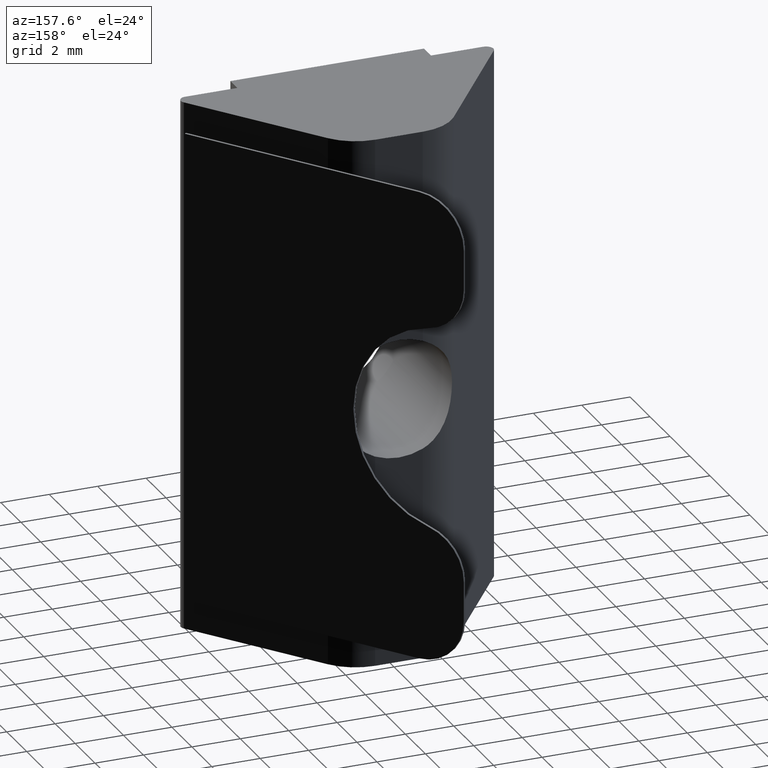
[diagram: clean part render]
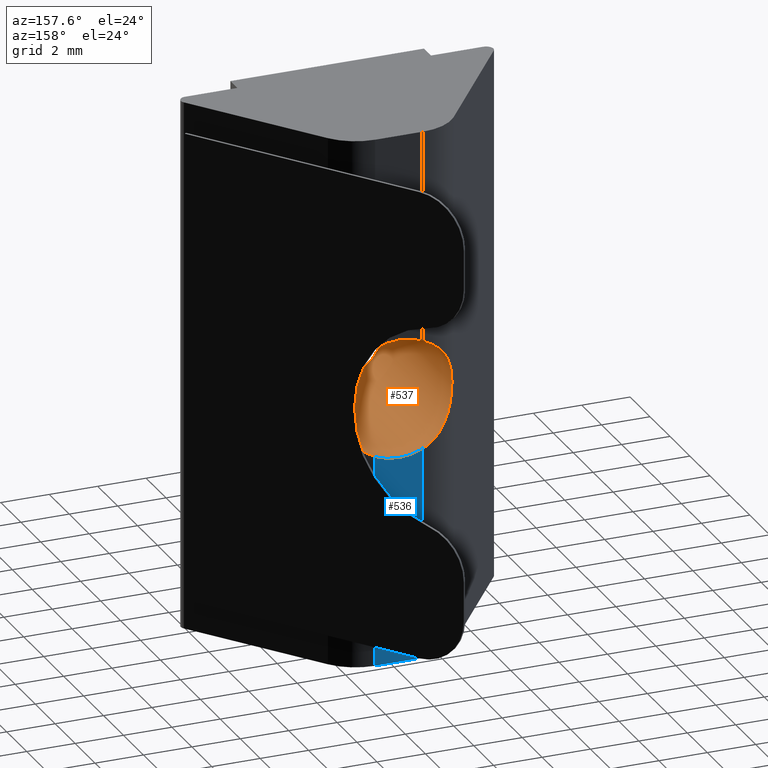
[diagram: same view with the hole feature highlighted: cylindrical wall and planar end face, labeled with their STEP entity ids]
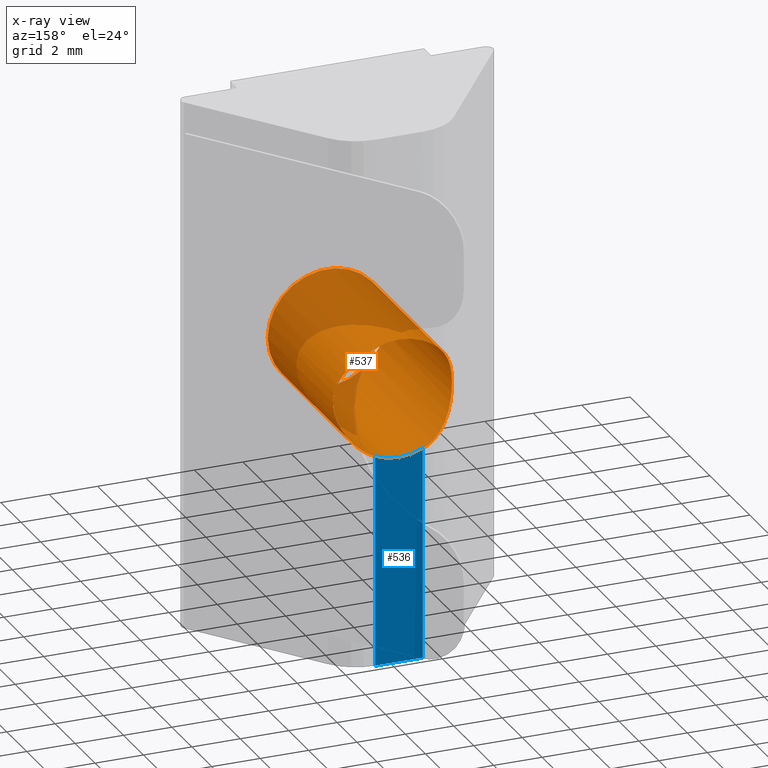
[diagram: x-ray of the same camera — body ghosted, the hole faces saturated]
A machine part, auxiliary view. The highlighted faces form one hole feature of diameter 4.917 mm: the cylindrical wall (entity #537, orange) and its adjacent planar end face (entity #536, blue) — they share a circular edge in the B-rep.
The next image is the same camera in x-ray (body ghosted, the hole faces saturated) — the bore reads through the body.
Wall:
#15=FACE_BOUND('',#87,.T.);
#17=B_SPLINE_CURVE_WITH_KNOTS('',3,(#882,#883,#884,#885,#886,#887,#888,
#889,#890,#891,#892,#893,#894,#895,#896,#897,#898,#899,#900),
 .UNSPECIFIED.,.F.,.F.,(4,2,2,2,3,2,2,2,4),(2.08150284938814,2.12607134314193,
2.24857998361291,2.3098343038484,2.37108862408389,2.43234294431938,2.49359726455487,
2.61610590502585,2.66067439877965),.UNSPECIFIED.);
#18=B_SPLINE_CURVE_WITH_KNOTS('',3,(#906,#907,#908,#909,#910,#911,#912,
#913,#914,#915,#916,#917,#918,#919,#920,#921,#922,#923),.UNSPECIFIED.,.F.,
 .F.,(4,2,2,2,2,2,2,2,4),(0.895958537346192,0.940527031099985,1.06303567157097,
1.12428999180646,1.18554431204195,1.24679863227744,1.30805295251293,1.43056159298391,
1.4751300867377),.UNSPECIFIED.);
#58=FACE_OUTER_BOUND('',#86,.T.);
#86=EDGE_LOOP('',(#476,#477,#478,#479));
#87=EDGE_LOOP('',(#480));
#221=CIRCLE('',#585,2.4585);
#222=CIRCLE('',#587,2.4585);
#223=CIRCLE('',#588,2.4585);
#270=VERTEX_POINT('',#879);
#271=VERTEX_POINT('',#881);
#272=VERTEX_POINT('',#903);
#273=VERTEX_POINT('',#905);
#274=VERTEX_POINT('',#929);
#340=EDGE_CURVE('',#270,#271,#17,.T.);
#343=EDGE_CURVE('',#272,#273,#18,.T.);
#345=EDGE_CURVE('',#271,#272,#221,.T.);
#346=EDGE_CURVE('',#273,#270,#222,.T.);
#347=EDGE_CURVE('',#274,#274,#223,.T.);
#476=ORIENTED_EDGE('',*,*,#340,.F.);
#477=ORIENTED_EDGE('',*,*,#346,.F.);
#478=ORIENTED_EDGE('',*,*,#343,.F.);
#479=ORIENTED_EDGE('',*,*,#345,.F.);
#480=ORIENTED_EDGE('',*,*,#347,.F.);
#515=CYLINDRICAL_SURFACE('',#586,2.4585);
#537=ADVANCED_FACE('',(#58,#15),#515,.F.);
#585=AXIS2_PLACEMENT_3D('',#926,#725,#726);
#586=AXIS2_PLACEMENT_3D('',#927,#727,#728);
#587=AXIS2_PLACEMENT_3D('',#928,#729,#730);
#588=AXIS2_PLACEMENT_3D('',#930,#731,#732);
#725=DIRECTION('center_axis',(0.,-1.,0.));
#726=DIRECTION('ref_axis',(1.,0.,0.));
#727=DIRECTION('center_axis',(0.,-1.,0.));
#728=DIRECTION('ref_axis',(1.,0.,0.));
#729=DIRECTION('center_axis',(0.,-1.,0.));
#730=DIRECTION('ref_axis',(1.,0.,0.));
#731=DIRECTION('center_axis',(0.,1.,0.));
#732=DIRECTION('ref_axis',(1.,0.,0.));
#879=CARTESIAN_POINT('',(-0.984424278753134,6.5,13.2528051601063));
#881=CARTESIAN_POINT('',(-0.984424278753134,6.5,8.74719483989374));
#882=CARTESIAN_POINT('Ctrl Pts',(-0.984424278753134,6.5,13.2528051601063));
#883=CARTESIAN_POINT('Ctrl Pts',(-1.12947979259443,6.5,13.1894192214902));
#884=CARTESIAN_POINT('Ctrl Pts',(-1.26702915766058,6.48377637040108,13.1119445698971));
#885=CARTESIAN_POINT('Ctrl Pts',(-1.72021441438632,6.39042818148256,12.8019875788869));
#886=CARTESIAN_POINT('Ctrl Pts',(-1.98926716754401,6.24433270316294,12.497368272932));
#887=CARTESIAN_POINT('Ctrl Pts',(-2.26539078296794,6.04020331842182,11.9751897541542));
#888=CARTESIAN_POINT('Ctrl Pts',(-2.33653147875614,5.97525520395448,11.7901306074719));
#889=CARTESIAN_POINT('Ctrl Pts',(-2.43307992151045,5.88056823222171,11.4047317655431));
#890=CARTESIAN_POINT('Ctrl Pts',(-2.4585,5.85170291411631,11.2041810674516));
#891=CARTESIAN_POINT('Ctrl Pts',(-2.4585,5.85170291411631,11.));
#892=CARTESIAN_POINT('Ctrl Pts',(-2.4585,5.85170291411631,10.7958189325484));
#893=CARTESIAN_POINT('Ctrl Pts',(-2.43307992151045,5.88056823222171,10.5952682344569));
#894=CARTESIAN_POINT('Ctrl Pts',(-2.33653147875614,5.97525520395448,10.2098693925281));
#895=CARTESIAN_POINT('Ctrl Pts',(-2.26539078296794,6.04020331842182,10.0248102458458));
#896=CARTESIAN_POINT('Ctrl Pts',(-1.98926716754401,6.24433270316294,9.50263172706804));
#897=CARTESIAN_POINT('Ctrl Pts',(-1.72021441438632,6.39042818148256,9.19801242111313));
#898=CARTESIAN_POINT('Ctrl Pts',(-1.26702915766058,6.48377637040108,8.88805543010295));
#899=CARTESIAN_POINT('Ctrl Pts',(-1.12947979259443,6.5,8.81058077850978));
#900=CARTESIAN_POINT('Ctrl Pts',(-0.984424278753139,6.5,8.74719483989375));
#903=CARTESIAN_POINT('',(0.984424278753136,6.5,8.74719483989374));
#905=CARTESIAN_POINT('',(0.984424278753135,6.5,13.2528051601063));
#906=CARTESIAN_POINT('Ctrl Pts',(0.984424278753136,6.5,8.74719483989375));
#907=CARTESIAN_POINT('Ctrl Pts',(1.12947979259443,6.5,8.81058077850978));
#908=CARTESIAN_POINT('Ctrl Pts',(1.26702915766058,6.48377637040108,8.88805543010295));
#909=CARTESIAN_POINT('Ctrl Pts',(1.72021441438632,6.39042818148256,9.19801242111313));
#910=CARTESIAN_POINT('Ctrl Pts',(1.98926716754401,6.24433270316294,9.50263172706804));
#911=CARTESIAN_POINT('Ctrl Pts',(2.26539078296794,6.04020331842182,10.0248102458458));
#912=CARTESIAN_POINT('Ctrl Pts',(2.33653147875614,5.97525520395449,10.2098693925281));
#913=CARTESIAN_POINT('Ctrl Pts',(2.43307992151045,5.88056823222171,10.5952682344569));
#914=CARTESIAN_POINT('Ctrl Pts',(2.4585,5.85170291411632,10.7958189325484));
#915=CARTESIAN_POINT('Ctrl Pts',(2.4585,5.85170291411632,11.2041810674516));
#916=CARTESIAN_POINT('Ctrl Pts',(2.43307992151045,5.88056823222171,11.4047317655431));
#917=CARTESIAN_POINT('Ctrl Pts',(2.33653147875614,5.97525520395448,11.7901306074719));
#918=CARTESIAN_POINT('Ctrl Pts',(2.26539078296794,6.04020331842182,11.9751897541542));
#919=CARTESIAN_POINT('Ctrl Pts',(1.98926716754401,6.24433270316293,12.497368272932));
#920=CARTESIAN_POINT('Ctrl Pts',(1.72021441438632,6.39042818148256,12.8019875788869));
#921=CARTESIAN_POINT('Ctrl Pts',(1.26702915766058,6.48377637040108,13.1119445698971));
#922=CARTESIAN_POINT('Ctrl Pts',(1.12947979259443,6.5,13.1894192214902));
#923=CARTESIAN_POINT('Ctrl Pts',(0.984424278753136,6.5,13.2528051601063));
#926=CARTESIAN_POINT('Origin',(0.,6.5,11.));
#927=CARTESIAN_POINT('Origin',(0.,26.0972013464093,11.));
#928=CARTESIAN_POINT('Origin',(0.,6.5,11.));
#929=CARTESIAN_POINT('',(2.4585,-0.699999999999999,11.));
#930=CARTESIAN_POINT('Origin',(0.,-0.699999999999998,11.));
End face:
#30=PLANE('',#584);
#57=FACE_OUTER_BOUND('',#85,.T.);
#85=EDGE_LOOP('',(#472,#473,#474,#475));
#130=LINE('',#851,#184);
#142=LINE('',#901,#196);
#143=LINE('',#904,#197);
#184=VECTOR('',#690,1.96884855750627);
#196=VECTOR('',#718,8.74719483989374);
#197=VECTOR('',#721,8.74719483989374);
#221=CIRCLE('',#585,2.4585);
#259=VERTEX_POINT('',#848);
#260=VERTEX_POINT('',#850);
#271=VERTEX_POINT('',#881);
#272=VERTEX_POINT('',#903);
#324=EDGE_CURVE('',#260,#259,#130,.T.);
#341=EDGE_CURVE('',#259,#271,#142,.T.);
#342=EDGE_CURVE('',#260,#272,#143,.T.);
#345=EDGE_CURVE('',#271,#272,#221,.T.);
#472=ORIENTED_EDGE('',*,*,#341,.T.);
#473=ORIENTED_EDGE('',*,*,#345,.T.);
#474=ORIENTED_EDGE('',*,*,#342,.F.);
#475=ORIENTED_EDGE('',*,*,#324,.T.);
#536=ADVANCED_FACE('',(#57),#30,.T.);
#584=AXIS2_PLACEMENT_3D('',#925,#723,#724);
#585=AXIS2_PLACEMENT_3D('',#926,#725,#726);
#690=DIRECTION('',(-1.,0.,0.));
#718=DIRECTION('',(0.,0.,1.));
#721=DIRECTION('',(0.,0.,1.));
#723=DIRECTION('center_axis',(0.,1.,0.));
#724=DIRECTION('ref_axis',(-1.,0.,0.));
#725=DIRECTION('center_axis',(0.,-1.,0.));
#726=DIRECTION('ref_axis',(1.,0.,0.));
#848=CARTESIAN_POINT('',(-0.984424278753134,6.5,0.));
#850=CARTESIAN_POINT('',(0.984424278753135,6.5,0.));
#851=CARTESIAN_POINT('',(2.,6.5,0.));
#881=CARTESIAN_POINT('',(-0.984424278753134,6.5,8.74719483989374));
#901=CARTESIAN_POINT('',(-0.984424278753134,6.5,0.));
#903=CARTESIAN_POINT('',(0.984424278753136,6.5,8.74719483989374));
#904=CARTESIAN_POINT('',(0.984424278753135,6.5,0.));
#925=CARTESIAN_POINT('Origin',(2.,6.5,0.));
#926=CARTESIAN_POINT('Origin',(0.,6.5,11.));